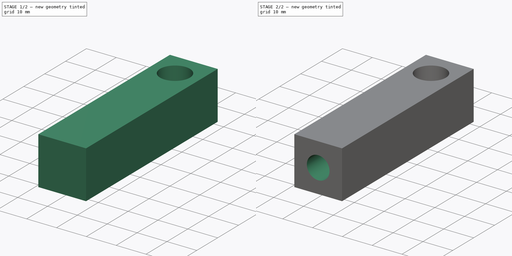
[diagram: build sequence overview — one tinted view per stage of 2, left to right]
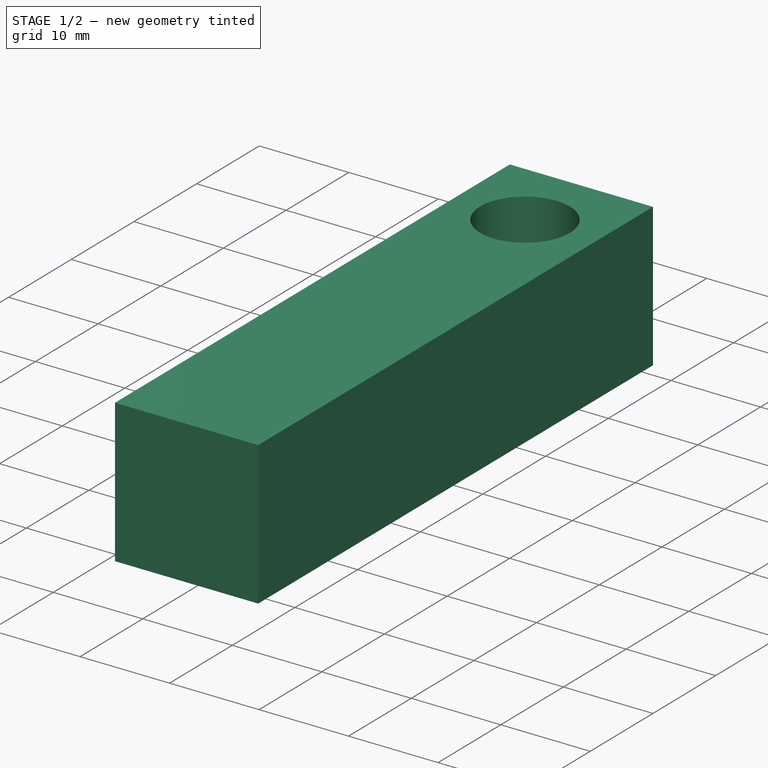
[diagram: stage 1 of 2 — iso view after this stage's code; geometry added in this stage tinted green]
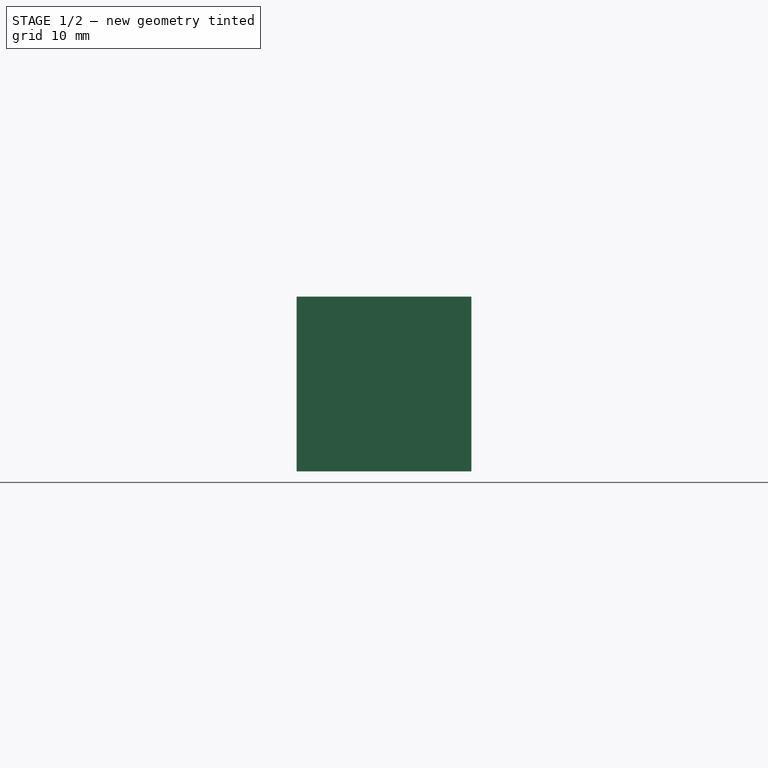
[diagram: stage 1 of 2 — front view after this stage's code; geometry added in this stage tinted green]
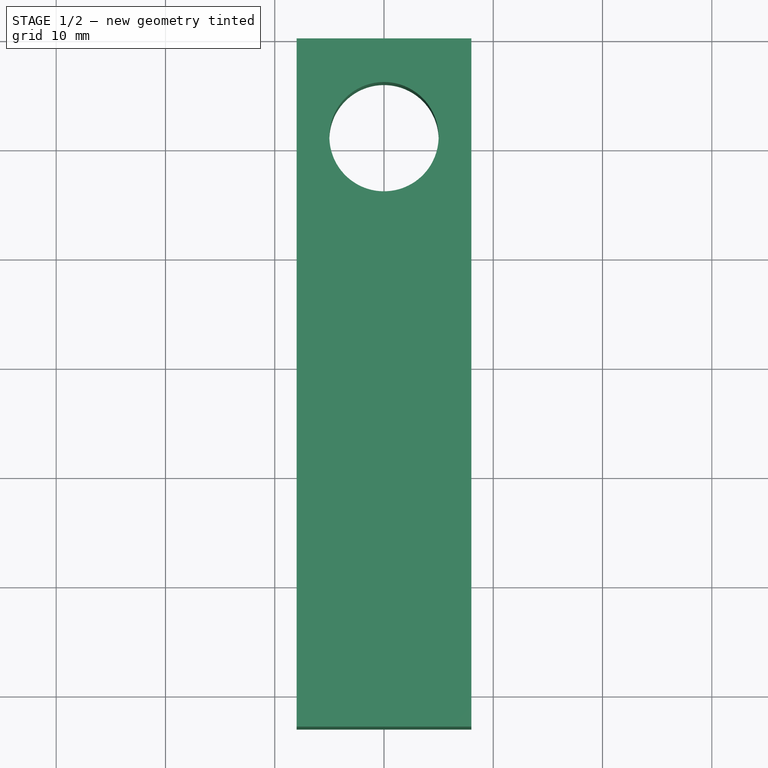
[diagram: stage 1 of 2 — top view after this stage's code; geometry added in this stage tinted green]
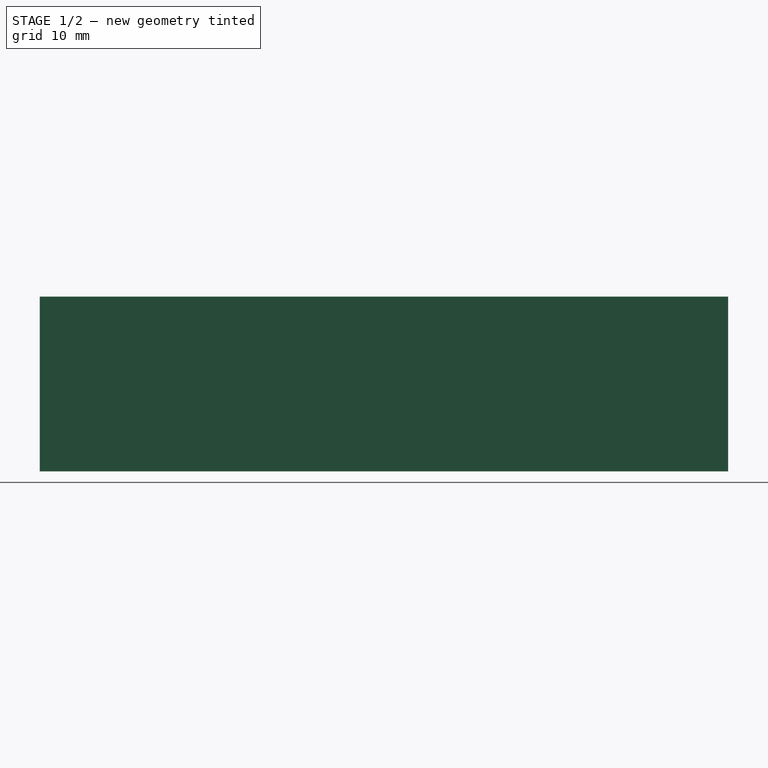
[diagram: stage 1 of 2 — right view after this stage's code; geometry added in this stage tinted green]
FCSTD DOCUMENT  (FreeCAD 0.16R5667 (Git))
Label: Air-spring-top-bar
License: CreativeCommons Attribution-ShareAlike
LicenseURL: http://creativecommons.org/licenses/by-sa/4.0/
objects: Sketcher::SketchObject×3, PartDesign::Pocket×2, PartDesign::Pad×1
note: 9 computed .brp shape members not serialized (recipe doc carries the construction recipe); baked Part::Feature solids carry a one-line shape summary decoded from their .brp

FEATURE [Sketcher::SketchObject] Sketch
  Placement = pos=(0,0,0) rot=(1,0,0;1.5708rad)
  sketch-geometry (4):
    g0: LineSegment StartX=-8 StartY=-8 StartZ=0 EndX=8 EndY=-8 EndZ=0
    g1: LineSegment StartX=8 StartY=-8 StartZ=0 EndX=8 EndY=8 EndZ=0
    g2: LineSegment StartX=8 StartY=8 StartZ=0 EndX=-8 EndY=8 EndZ=0
    g3: LineSegment StartX=-8 StartY=8 StartZ=0 EndX=-8 EndY=-8 EndZ=0
  constraints (12):
    c: Coincident(g0,g1)
    c: Coincident(g1,g2)
    c: Coincident(g2,g3)
    c: Coincident(g3,g0)
    c: Horizontal(g0)
    c: Horizontal(g2)
    c: Vertical(g1)
    c: Vertical(g3)
    c: Equal(g0,g1)
    c: DistanceY(g1) = 16
    c: Symmetric(g2,g1,g-2)
    c: Symmetric(g1,g0,g-1)
FEATURE [PartDesign::Pad] Pad
  Length = 63
  Length2 = 100
  Placement = pos=(0,0,0) rot=(1,0,0;1.5708rad)
  Sketch = -> Sketch
  Type = 0
FEATURE [Sketcher::SketchObject] Sketch001
  Placement = pos=(0,0,8) rot=(0,0,1;3.14159rad)
  Support = -> Pad [Face3]
  sketch-geometry (1):
    g0: Circle CenterX=0 CenterY=9 CenterZ=0 NormalX=0 NormalY=0 NormalZ=1 Radius=5
  constraints (3):
    c: Radius(g0) = 5
    c: PointOnObject(g0,g-2)
    c: DistanceY(g-1,g0) = 9
FEATURE [PartDesign::Pocket] Pocket
  Length = 16
  Placement = pos=(0,0,0) rot=(1,0,0;1.5708rad)
  Sketch = -> Sketch001
  Type = 0
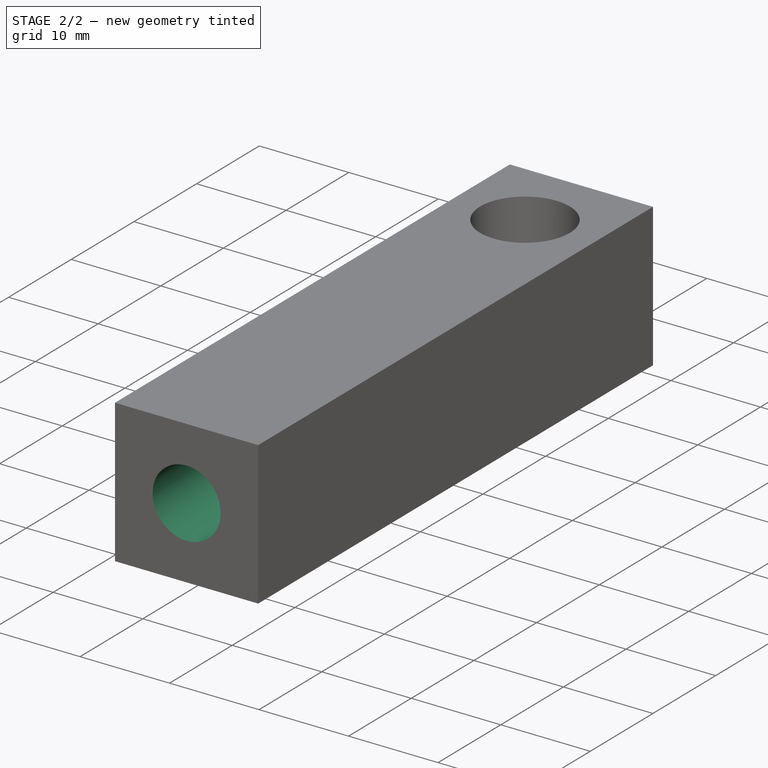
[diagram: stage 2 of 2 — iso view after this stage's code; geometry added in this stage tinted green]
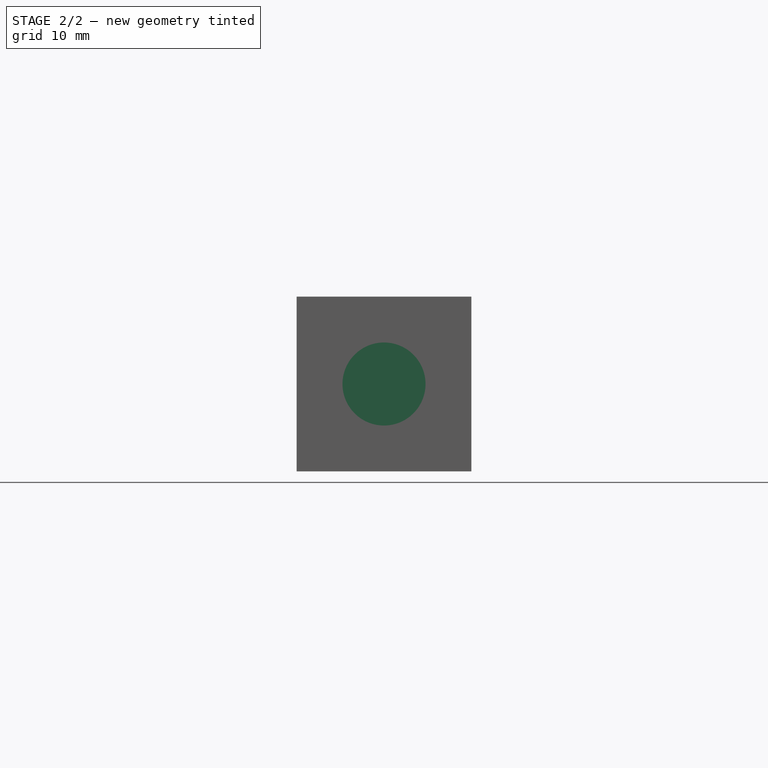
[diagram: stage 2 of 2 — front view after this stage's code; geometry added in this stage tinted green]
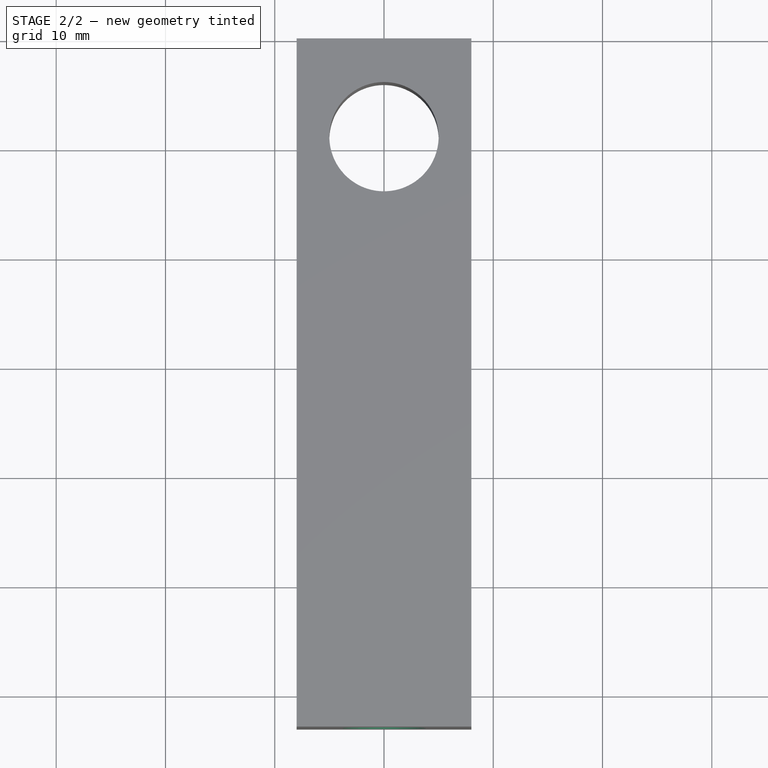
[diagram: stage 2 of 2 — top view after this stage's code; geometry added in this stage tinted green]
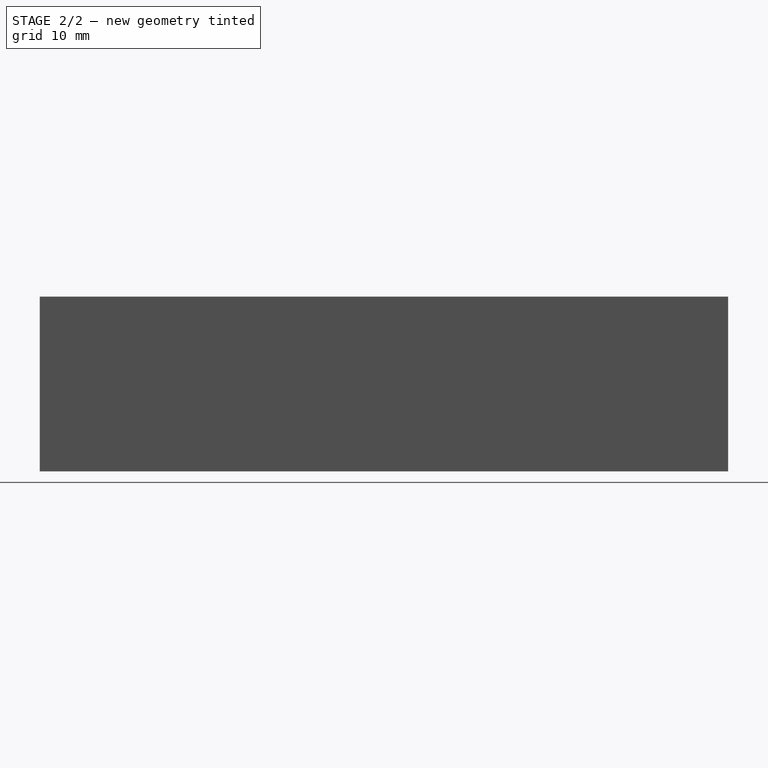
[diagram: stage 2 of 2 — right view after this stage's code; geometry added in this stage tinted green]
FEATURE [Sketcher::SketchObject] Sketch002
  Placement = pos=(0,-63,0) rot=(1,0,0;1.5708rad)
  Support = -> Pocket [Face4]
  sketch-geometry (1):
    g0: Circle CenterX=0 CenterY=0 CenterZ=0 NormalX=0 NormalY=0 NormalZ=1 Radius=3.8
  constraints (2):
    c: Coincident(g0,g-1)
    c: Radius(g0) = 3.8
FEATURE [PartDesign::Pocket] Pocket001
  Length = 10
  Placement = pos=(0,0,0) rot=(1,0,0;1.5708rad)
  Sketch = -> Sketch002
  Type = 0
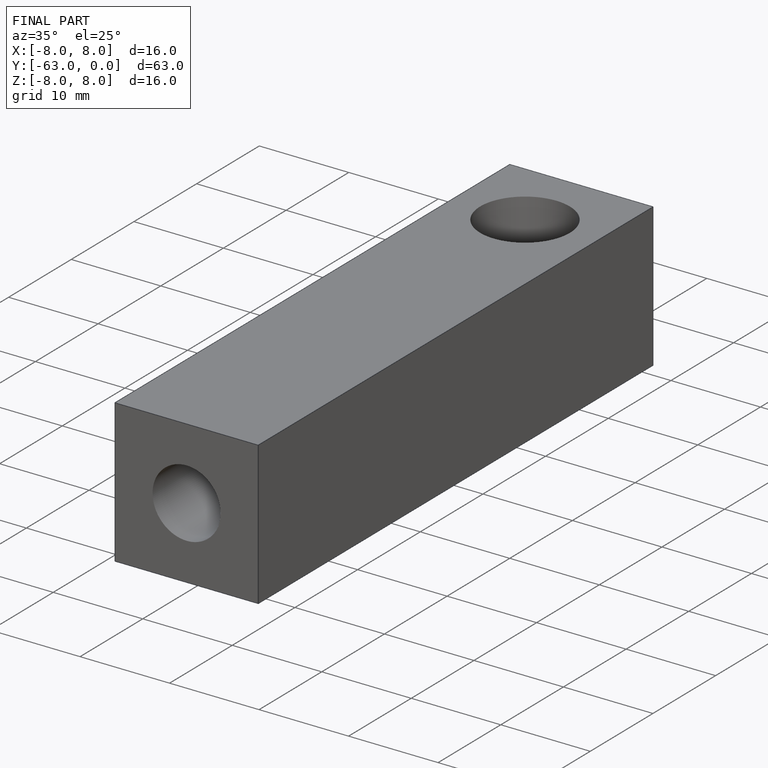
[diagram: finished part — iso view with bounding-box wireframe]
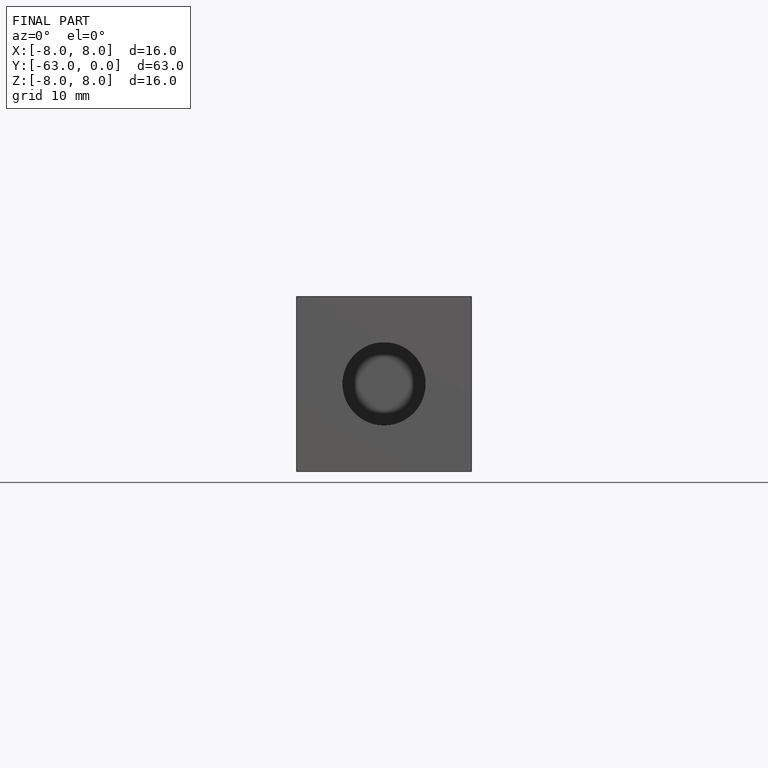
[diagram: finished part — front view with bounding-box wireframe]
